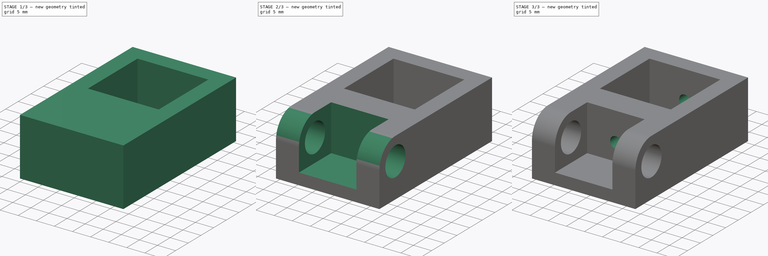
[diagram: build sequence overview — one tinted view per stage of 3, left to right]
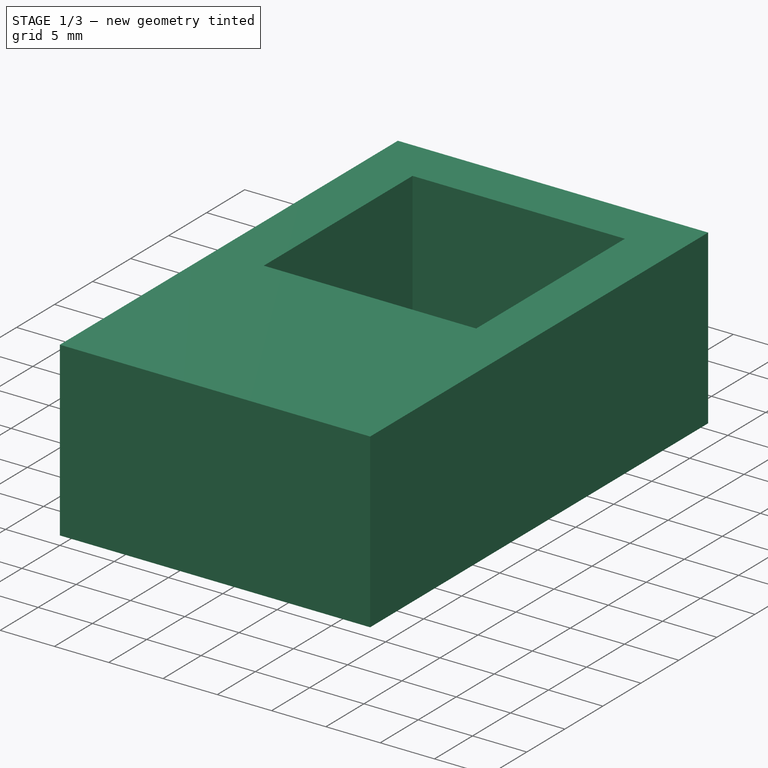
[diagram: stage 1 of 3 — iso view after this stage's code; geometry added in this stage tinted green]
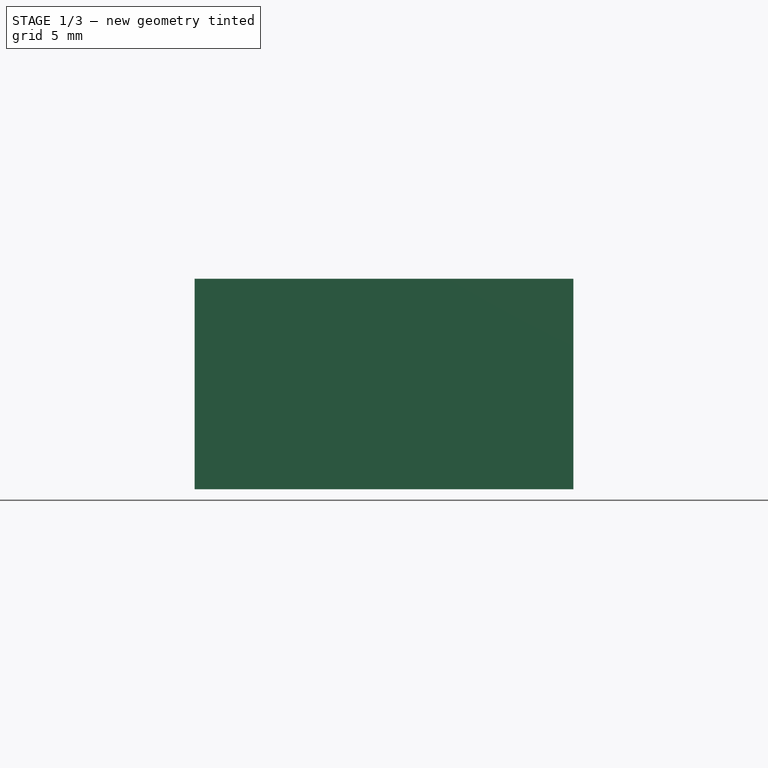
[diagram: stage 1 of 3 — front view after this stage's code; geometry added in this stage tinted green]
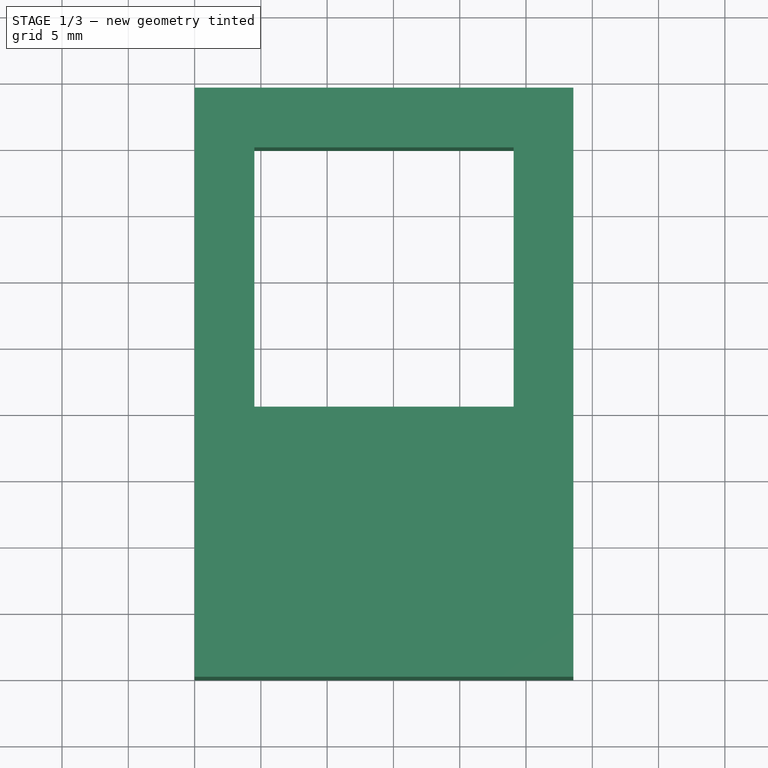
[diagram: stage 1 of 3 — top view after this stage's code; geometry added in this stage tinted green]
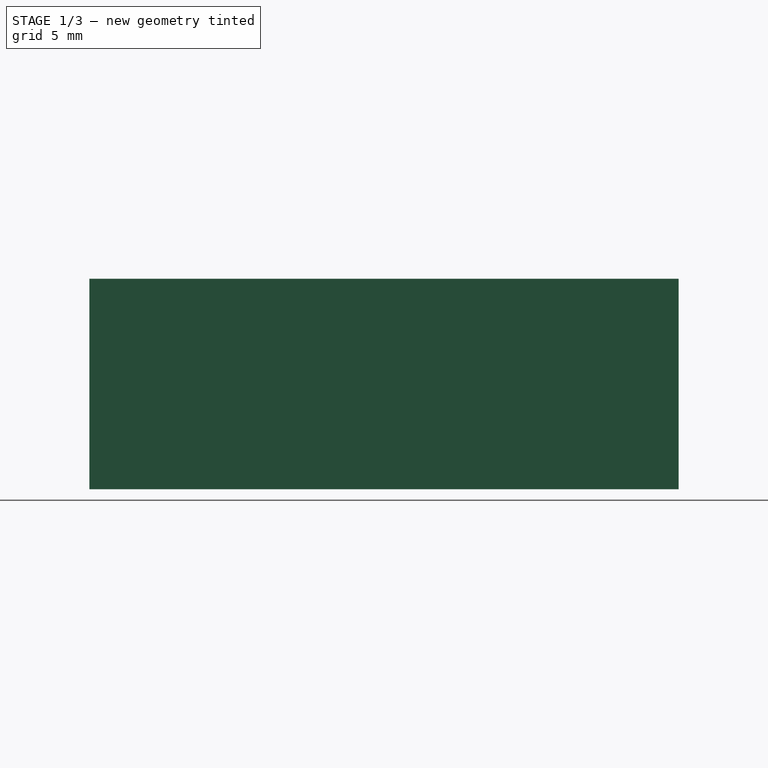
[diagram: stage 1 of 3 — right view after this stage's code; geometry added in this stage tinted green]
FCSTD DOCUMENT  (FreeCAD 0.14R3702 (Git))
Label: El-conn-imperial
License: CC-BY 3.0
LicenseURL: http://creativecommons.org/licenses/by/3.0/
objects: Sketcher::SketchObject×6, PartDesign::Pocket×5, PartDesign::Pad×1
note: 18 computed .brp shape members not serialized (recipe doc carries the construction recipe); baked Part::Feature solids carry a one-line shape summary decoded from their .brp

FEATURE [Sketcher::SketchObject] Sketch
  sketch-geometry (4):
    g0: LineSegment StartX=0 StartY=44.45 StartZ=0 EndX=28.575 EndY=44.45 EndZ=0
    g1: LineSegment StartX=28.575 StartY=44.45 StartZ=0 EndX=28.575 EndY=0 EndZ=0
    g2: LineSegment StartX=28.575 StartY=0 StartZ=0 EndX=0 EndY=0 EndZ=0
    g3: LineSegment StartX=0 StartY=0 StartZ=0 EndX=0 EndY=44.45 EndZ=0
  constraints (12):
    c: Coincident(g0,g1)
    c: Coincident(g1,g2)
    c: Coincident(g2,g3)
    c: Coincident(g3,g0)
    c: Horizontal(g0)
    c: Horizontal(g2)
    c: Vertical(g1)
    c: Vertical(g3)
    c: PointOnObject(g0,g-2)
    c: PointOnObject(g1,g-1)
    c: Distance(g-1,g1) = 28.575
    c: Distance(g1,g0) = 44.45
FEATURE [PartDesign::Pad] Pad
  Length = 15.875
  Length2 = 100
  Sketch = -> Sketch
  Type = 0
FEATURE [Sketcher::SketchObject] Sketch002
  Placement = pos=(0,0,0) rot=(1,0,0;3.14159rad)
  Support = -> Pad [Face5]
  sketch-geometry (4):
    g0: LineSegment StartX=4.5085 StartY=-20.3835 StartZ=0 EndX=24.0665 EndY=-20.3835 EndZ=0
    g1: LineSegment StartX=24.0665 StartY=-20.3835 StartZ=0 EndX=24.0665 EndY=-39.9415 EndZ=0
    g2: LineSegment StartX=24.0665 StartY=-39.9415 StartZ=0 EndX=4.5085 EndY=-39.9415 EndZ=0
    g3: LineSegment StartX=4.5085 StartY=-39.9415 StartZ=0 EndX=4.5085 EndY=-20.3835 EndZ=0
  constraints (12):
    c: Coincident(g0,g1)
    c: Coincident(g1,g2)
    c: Coincident(g2,g3)
    c: Coincident(g3,g0)
    c: Horizontal(g0)
    c: Horizontal(g2)
    c: Vertical(g1)
    c: Vertical(g3)
    c: Distance(g1,g0) = 19.558
    c: Distance(g1,g2) = 19.558
    c: DistanceX(g-1,g2) = 4.5085
    c: DistanceY(g-1,g2) = -39.9415
FEATURE [PartDesign::Pocket] Pocket
  Length = 5
  Sketch = -> Sketch002
  Type = 1
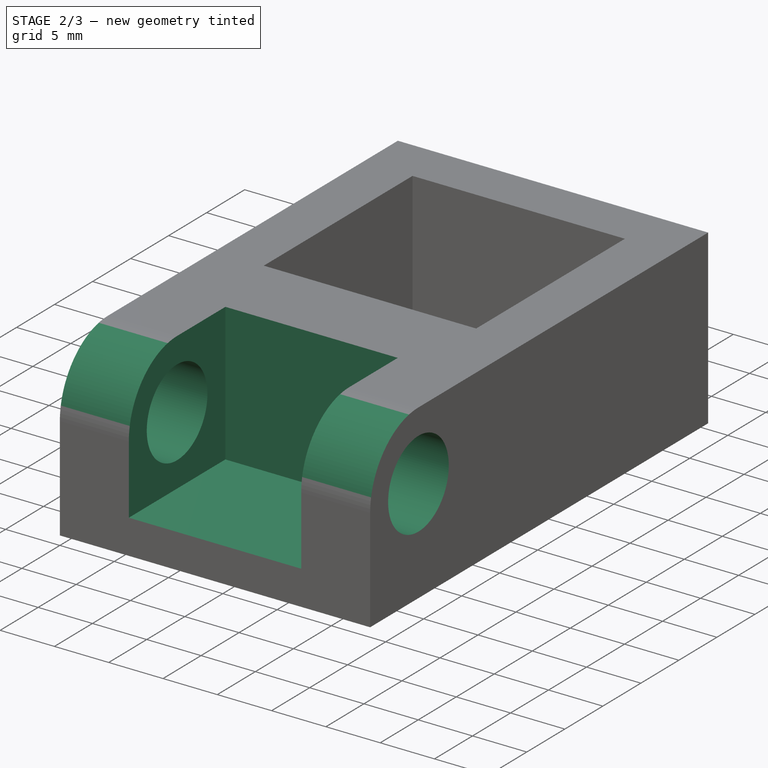
[diagram: stage 2 of 3 — iso view after this stage's code; geometry added in this stage tinted green]
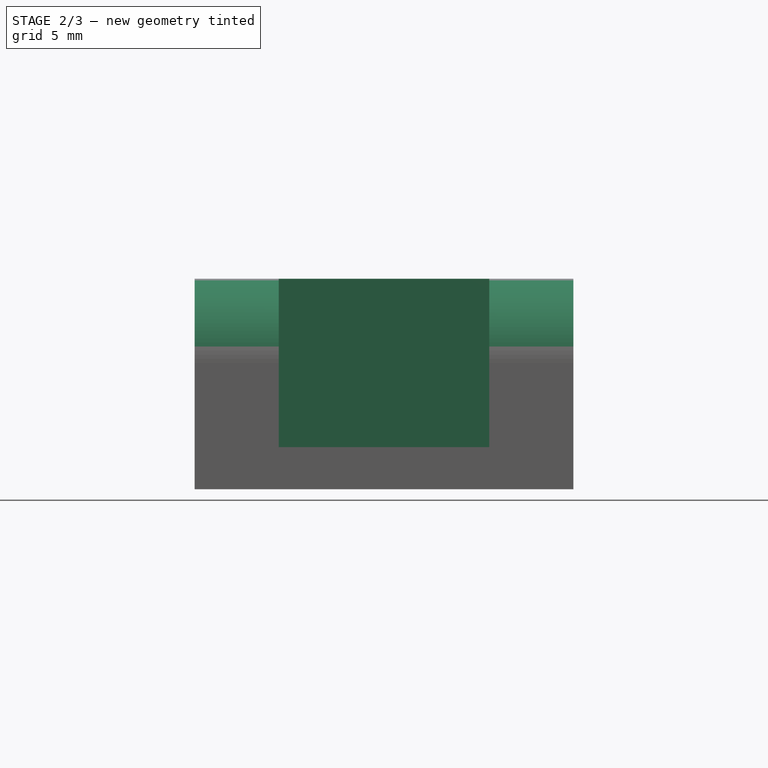
[diagram: stage 2 of 3 — front view after this stage's code; geometry added in this stage tinted green]
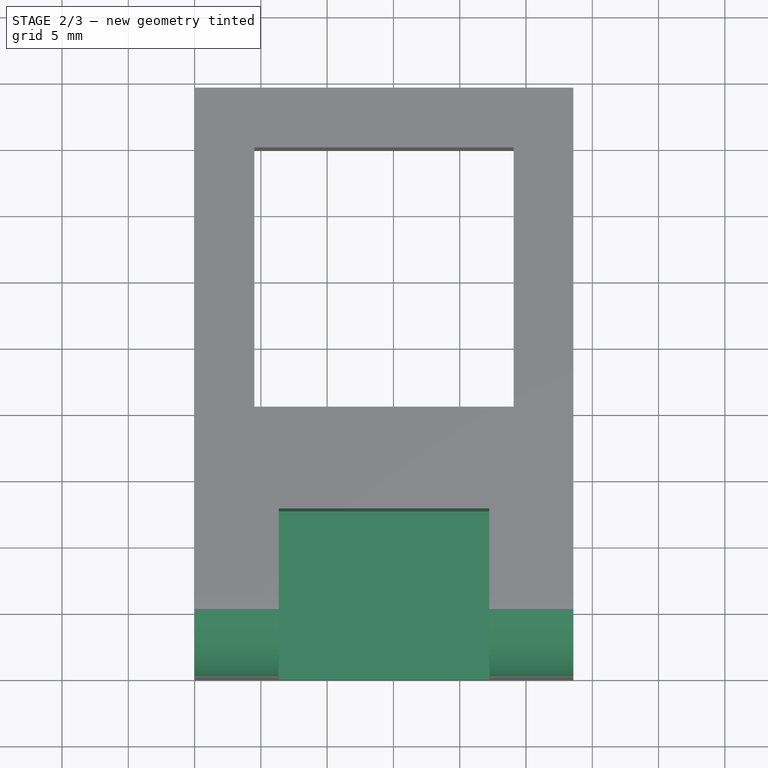
[diagram: stage 2 of 3 — top view after this stage's code; geometry added in this stage tinted green]
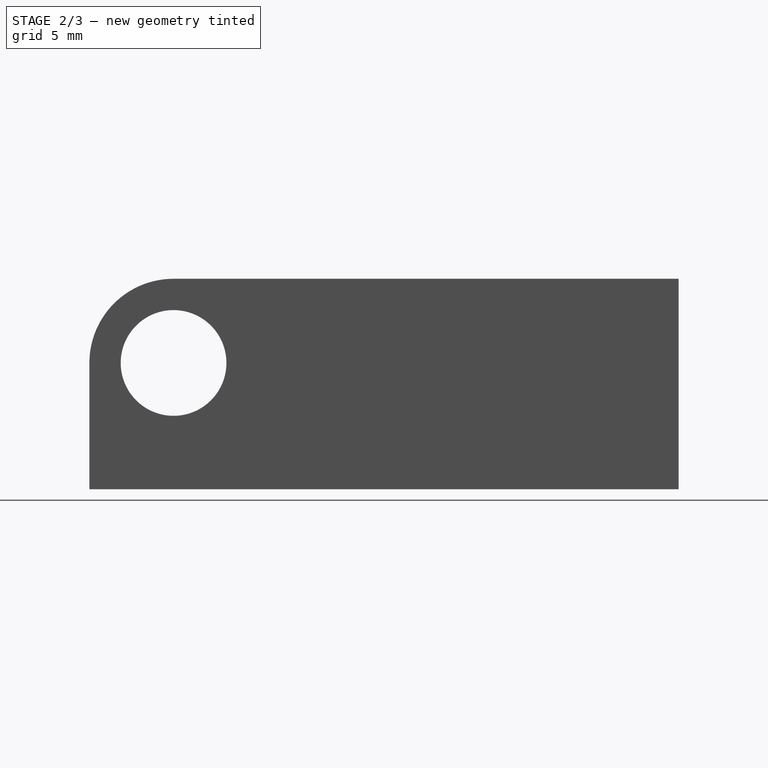
[diagram: stage 2 of 3 — right view after this stage's code; geometry added in this stage tinted green]
FEATURE [Sketcher::SketchObject] Sketch003
  Placement = pos=(0,0,15.875) rot=(0,0,1;0rad)
  Support = -> Pocket [Face5]
  sketch-geometry (4):
    g0: LineSegment StartX=6.35 StartY=0 StartZ=0 EndX=22.225 EndY=0 EndZ=0
    g1: LineSegment StartX=22.225 StartY=0 StartZ=0 EndX=22.225 EndY=12.7 EndZ=0
    g2: LineSegment StartX=22.225 StartY=12.7 StartZ=0 EndX=6.35 EndY=12.7 EndZ=0
    g3: LineSegment StartX=6.35 StartY=12.7 StartZ=0 EndX=6.35 EndY=0 EndZ=0
  constraints (12):
    c: Coincident(g0,g1)
    c: Coincident(g1,g2)
    c: Coincident(g2,g3)
    c: Coincident(g3,g0)
    c: Horizontal(g0)
    c: Horizontal(g2)
    c: Vertical(g1)
    c: Vertical(g3)
    c: PointOnObject(g0,g-1)
    c: Distance(g0) = 15.875
    c: DistanceX(g-1,g0) = 6.35
    c: DistanceY(g0,g2) = 12.7
FEATURE [PartDesign::Pocket] Pocket001
  Length = 12.7
  Sketch = -> Sketch003
  Type = 0
FEATURE [Sketcher::SketchObject] Sketch004  label="curve"
  Placement = pos=(28.575,0,0) rot=(0.57735,0.57735,0.57735;2.0944rad)
  Support = -> Pocket001 [Face3]
  sketch-geometry (7):
    g0: Circle CenterX=6.35 CenterY=9.525 CenterZ=0 NormalX=0 NormalY=0 NormalZ=1 Radius=3.9878
    g1: GeomPoint [constr] X=6.35 Y=15.875 Z=0
    g2: GeomPoint [constr] X=0 Y=9.525 Z=0
    g3: ArcOfCircle CenterX=6.35 CenterY=9.525 CenterZ=0 NormalX=0 NormalY=0 NormalZ=1 Radius=6.35 StartAngle=1.5708 EndAngle=3.14159
    g4: GeomPoint [constr] X=0 Y=15.875 Z=0
    g5: LineSegment StartX=0 StartY=15.875 StartZ=0 EndX=6.35 EndY=15.875 EndZ=0
    g6: LineSegment StartX=0 StartY=9.525 StartZ=0 EndX=0 EndY=15.875 EndZ=0
  constraints (19):
    c: Radius(g0) = 3.9878
    c: DistanceX(g-1,g0) = 6.35
    c: DistanceY(g-1,g0) = 9.525
    c: DistanceX(g-1,g1) = 6.35
    c: PointOnObject(g2,g-2)
    c: DistanceY(g-1,g2) = 9.525
    c: DistanceY(g-1,g1) = 15.875
    c: Coincident(g3,g0)
    c: Coincident(g3,g1)
    c: Coincident(g3,g2)
    c: PointOnObject(g4,g-2)
    c: DistanceY(g-1,g4) = 15.875
    c: Coincident(g5,g4)
    c: Horizontal(g5)
    c: Distance(g5) = 6.35
    c: PointOnObject(g6,g-2)
    c: Vertical(g6)
    c: Distance(g6) = 6.35
    c: DistanceY(g-1,g6) = 9.525
FEATURE [PartDesign::Pocket] Pocket002
  Length = 5
  Sketch = -> Sketch004
  Type = 1
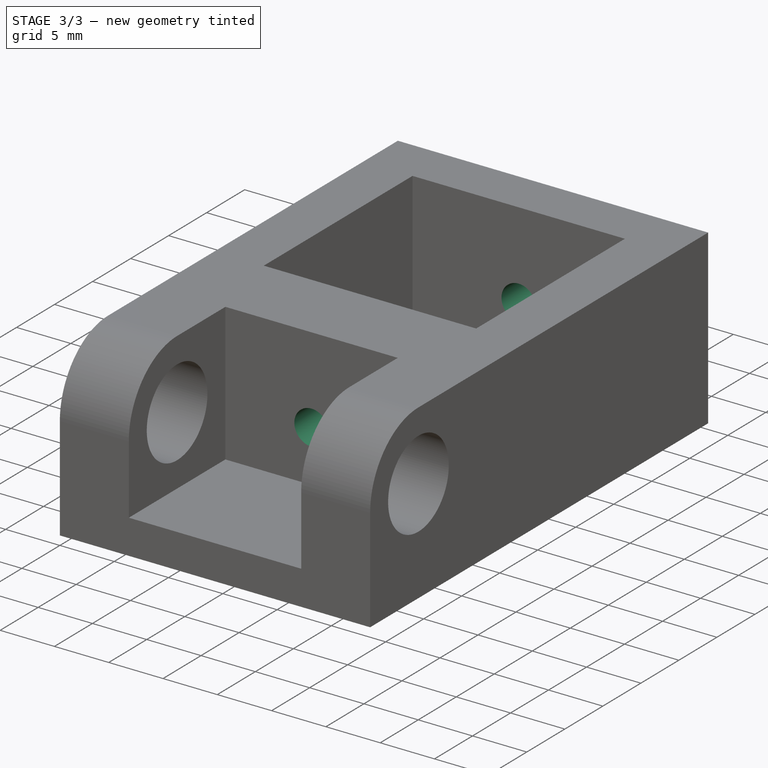
[diagram: stage 3 of 3 — iso view after this stage's code; geometry added in this stage tinted green]
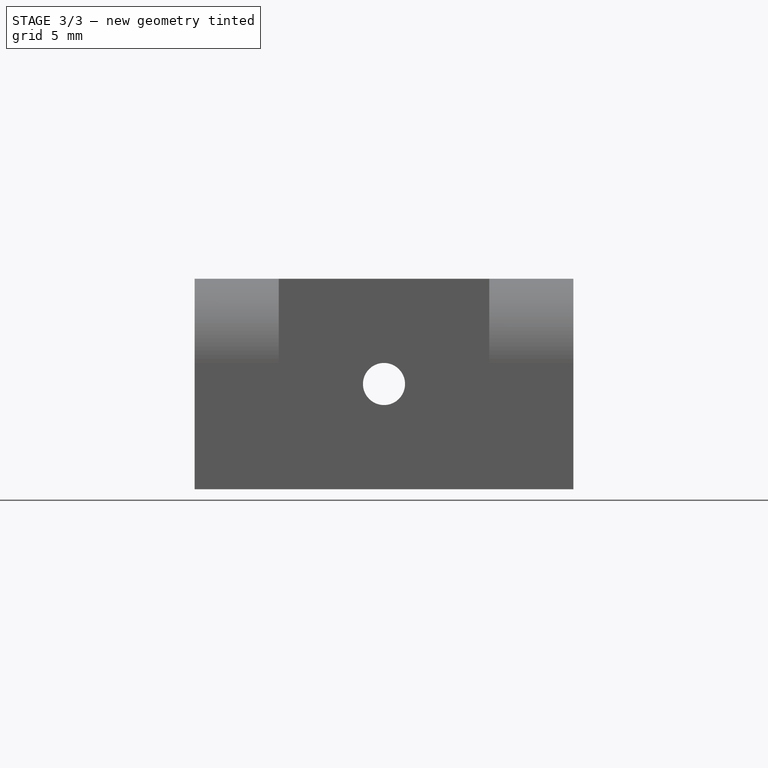
[diagram: stage 3 of 3 — front view after this stage's code; geometry added in this stage tinted green]
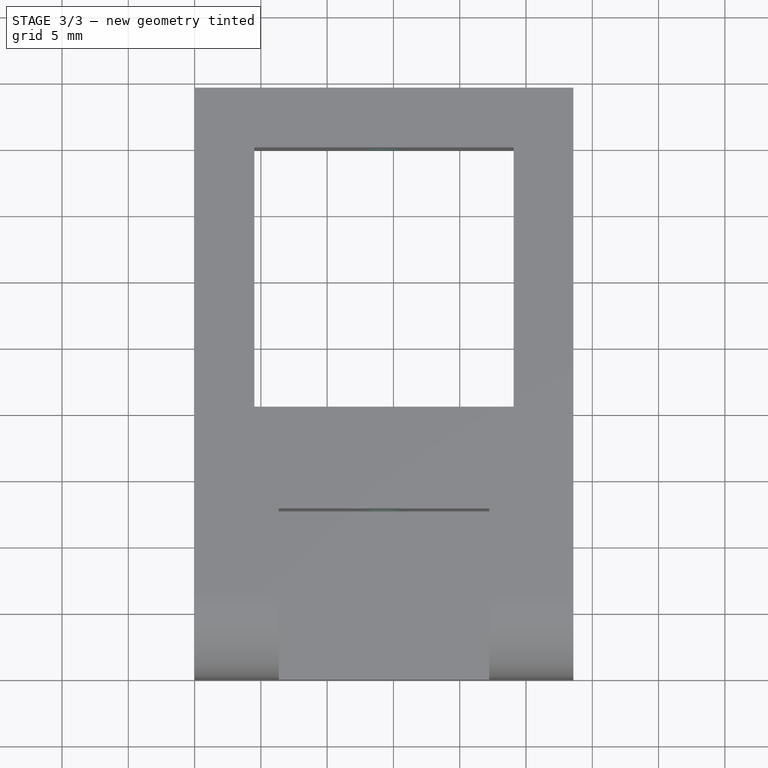
[diagram: stage 3 of 3 — top view after this stage's code; geometry added in this stage tinted green]
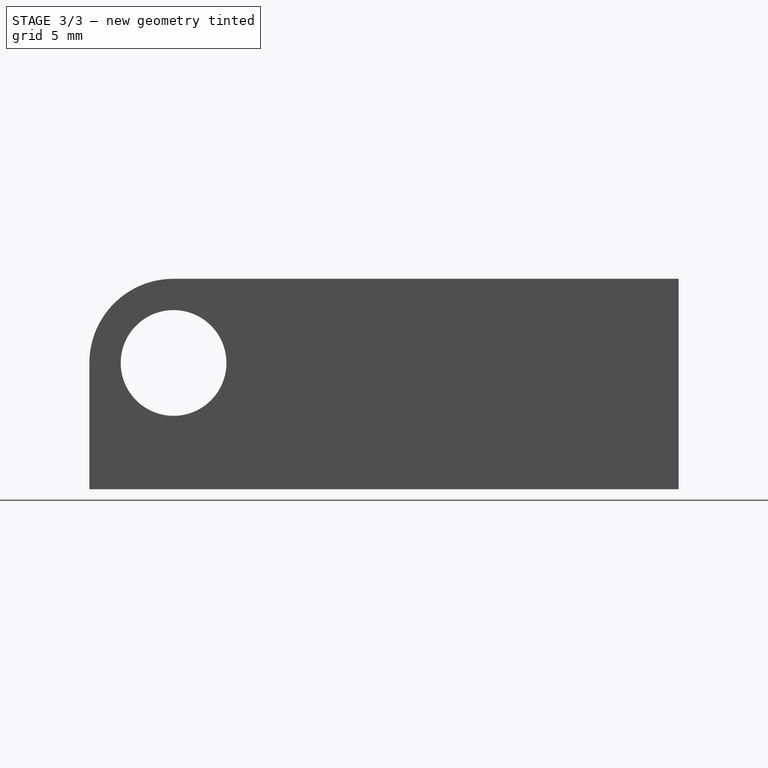
[diagram: stage 3 of 3 — right view after this stage's code; geometry added in this stage tinted green]
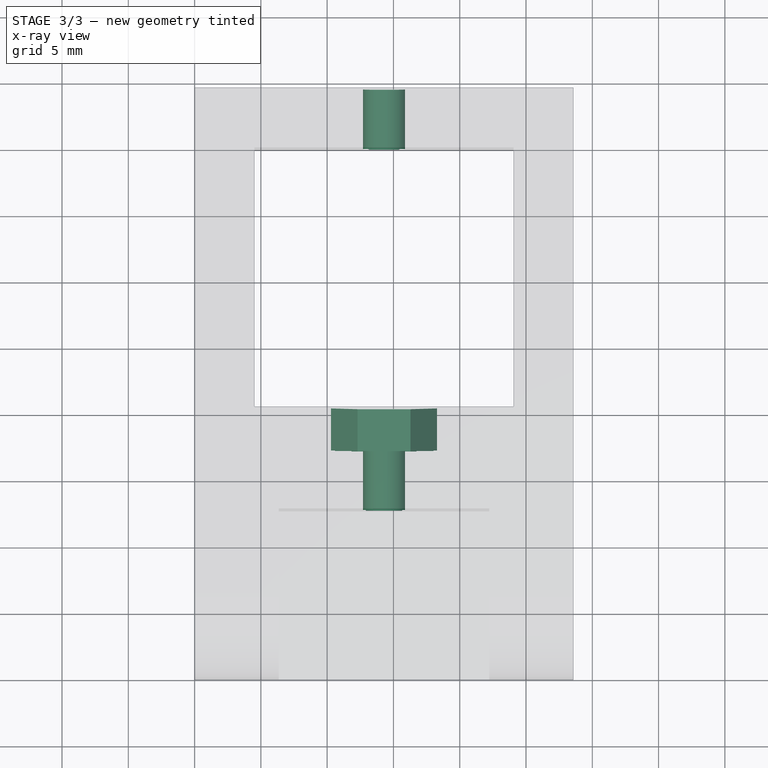
[diagram: stage 3 of 3 — x-ray composite at the top view; earlier geometry ghosted, this stage's added geometry solid]
FEATURE [Sketcher::SketchObject] Sketch005
  Placement = pos=(0,44.45,0) rot=(0,0.707107,0.707107;3.14159rad)
  Support = -> Pocket002 [Face1]
  sketch-geometry (1):
    g0: Circle CenterX=-14.2875 CenterY=7.9375 CenterZ=0 NormalX=0 NormalY=0 NormalZ=1 Radius=1.5875
  constraints (3):
    c: Radius(g0) = 1.5875
    c: DistanceX(g-1,g0) = -14.2875
    c: DistanceY(g-1,g0) = 7.9375
FEATURE [PartDesign::Pocket] Pocket003
  Length = 5
  Sketch = -> Sketch005
  Type = 1
FEATURE [Sketcher::SketchObject] Sketch006
  Placement = pos=(0,20.3835,0) rot=(0,0.707107,0.707107;3.14159rad)
  Support = -> Pocket003 [Face13]
  sketch-geometry (6):
    g0: LineSegment StartX=-16.2875 StartY=11.4016 StartZ=0 EndX=-12.2875 EndY=11.4016 EndZ=0
    g1: LineSegment StartX=-12.2875 StartY=11.4016 StartZ=0 EndX=-10.2875 EndY=7.93749 EndZ=0
    g2: LineSegment StartX=-10.2875 StartY=7.93749 StartZ=0 EndX=-12.2875 EndY=4.4734 EndZ=0
    g3: LineSegment StartX=-12.2875 StartY=4.4734 StartZ=0 EndX=-16.2875 EndY=4.4734 EndZ=0
    g4: LineSegment StartX=-16.2875 StartY=4.4734 StartZ=0 EndX=-18.2875 EndY=7.93749 EndZ=0
    g5: LineSegment StartX=-18.2875 StartY=7.93749 StartZ=0 EndX=-16.2875 EndY=11.4016 EndZ=0
  constraints (20):
    c: Horizontal(g0)
    c: Coincident(g0,g1)
    c: Coincident(g1,g2)
    c: Coincident(g2,g3)
    c: Coincident(g3,g4)
    c: Coincident(g4,g5)
    c: Coincident(g5,g0)
    c: Parallel(g3,g0)
    c: DistanceX(g3) = -3.99999
    c: Distance(g0) = 3.99999
    c: Distance(g1) = 3.99999
    c: Distance(g2) = 3.99999
    c: Distance(g4) = 3.99999
    c: Distance(g5) = 3.99999
    c: Angle(g0,g1) = 2.0944
    c: Angle(g1,g2) = 2.0944
    c: Parallel(g1,g4)
    c: Equal(g2,g5)
    c: DistanceY(g-1,g2) = 4.4734
    c: DistanceX(g-1,g1) = -10.2875
FEATURE [PartDesign::Pocket] Pocket004
  Length = 3.2
  Sketch = -> Sketch006
  Type = 0
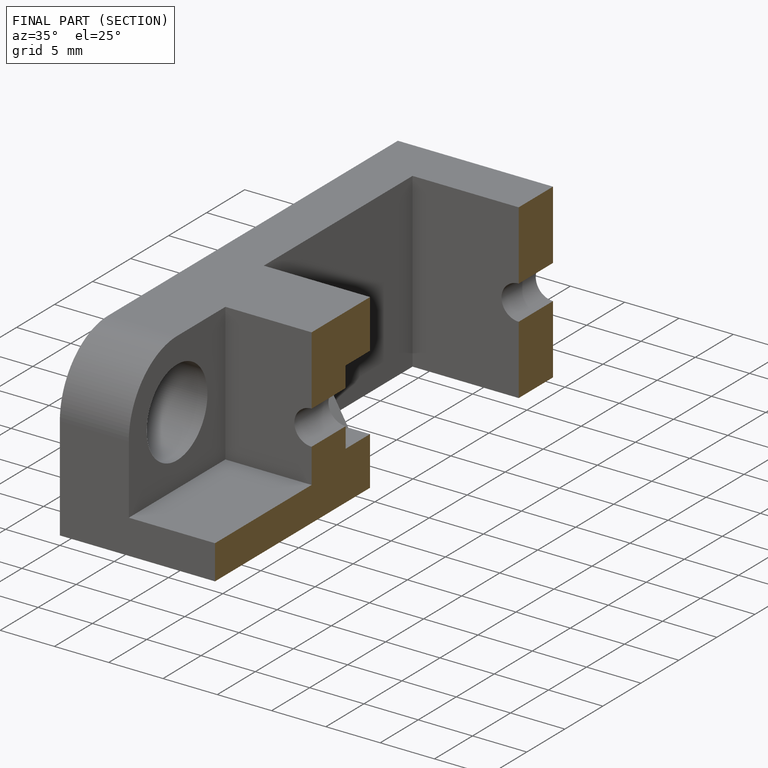
[diagram: finished part — half-section view (interior)]
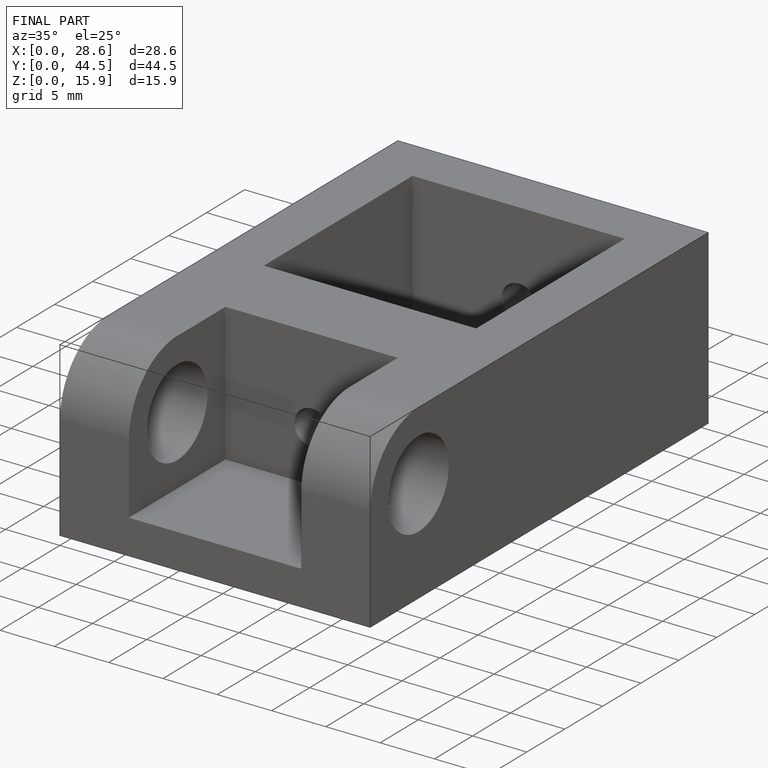
[diagram: finished part — iso view with bounding-box wireframe]
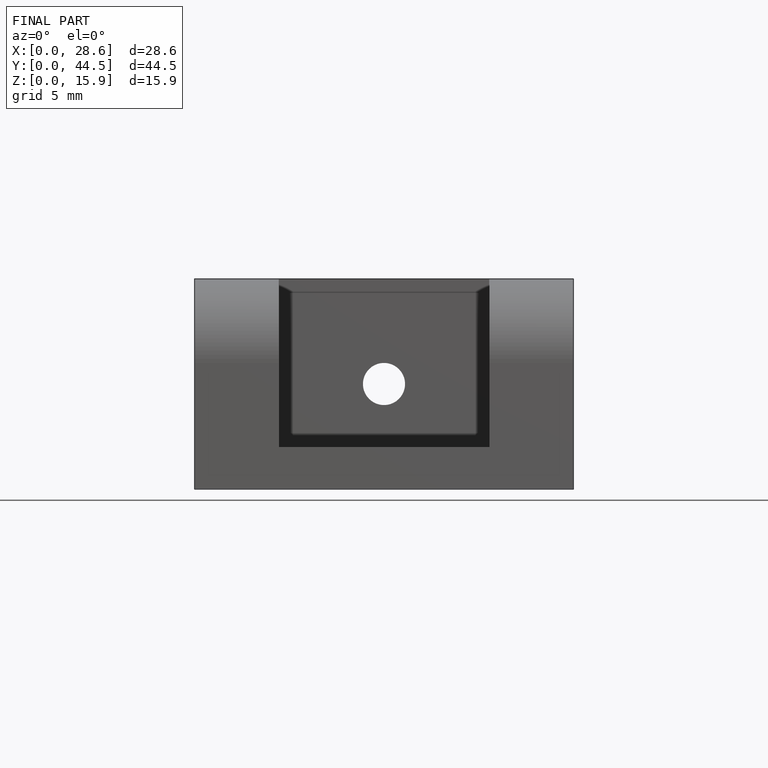
[diagram: finished part — front view with bounding-box wireframe]
